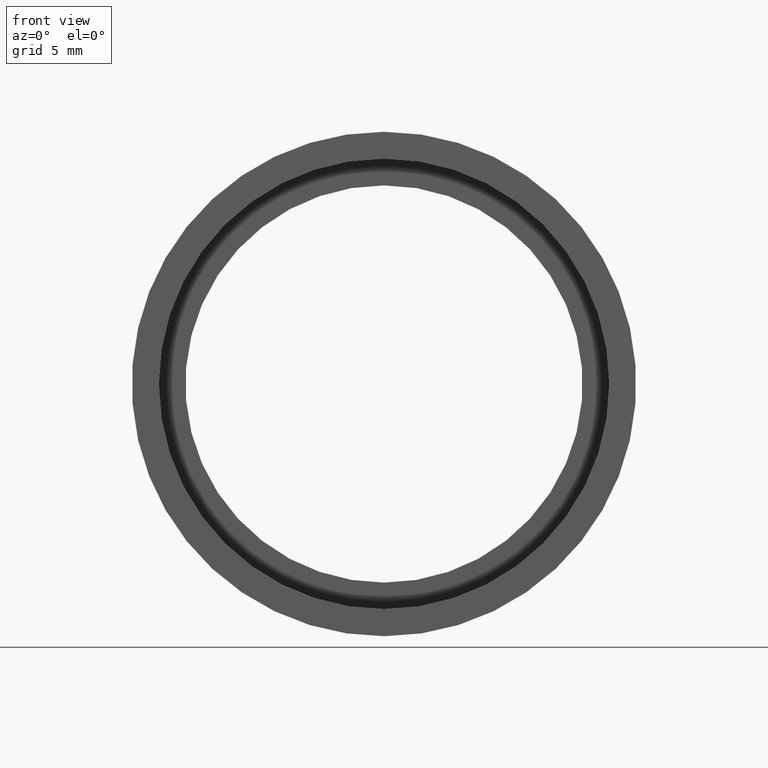
[diagram: clean part render]
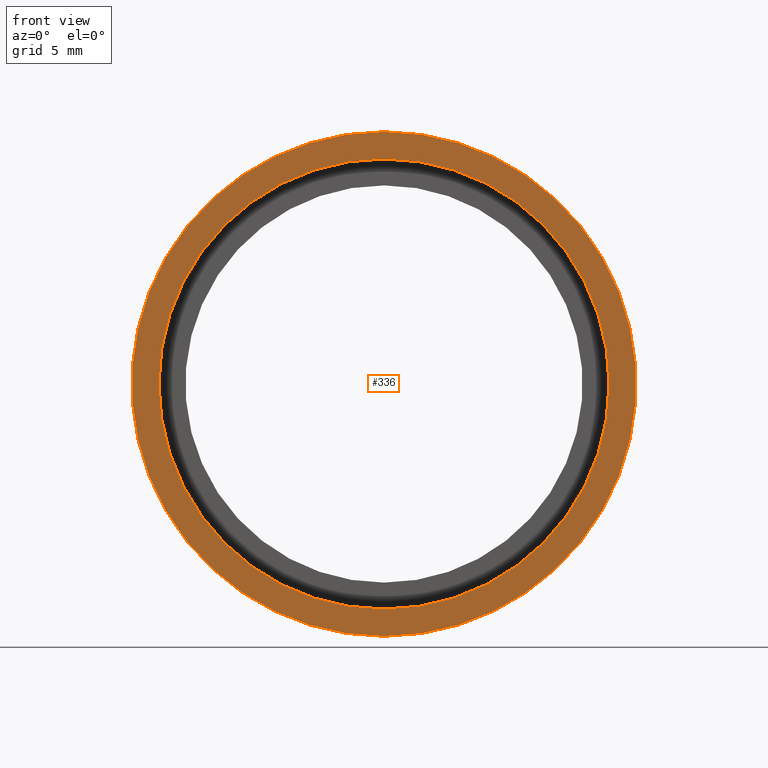
[diagram: same view with one face highlighted and labeled with its STEP entity id]
A machine part, front view. The second image highlights one B-rep face of the part: STEP entity #336.
In plain terms, the highlighted planar face has unit normal (-0, 1, 0).
Its self-contained STEP definition (entity closure, byte-faithful):
#1 = CARTESIAN_POINT ( 'NONE',  ( 0.0000000000000000000, -2.775557561562891400E-014, 0.0000000000000000000 ) ) ;
#21 = CARTESIAN_POINT ( 'NONE',  ( 0.0000000000000000000, -2.775557561562891400E-014, 19.05000000000002200 ) ) ;
#29 = EDGE_LOOP ( 'NONE', ( #354, #327 ) ) ;
#38 = DIRECTION ( 'NONE',  ( -0.0000000000000000000, 1.000000000000000000, -0.0000000000000000000 ) ) ;
#89 = CIRCLE ( 'NONE', #367, 19.05000000000002200 ) ;
#92 = CARTESIAN_POINT ( 'NONE',  ( 17.00000000000002100, -1.493598162583808000E-014, 0.0000000000000000000 ) ) ;
#94 = DIRECTION ( 'NONE',  ( 0.0000000000000000000, 0.0000000000000000000, 1.000000000000000000 ) ) ;
#101 = AXIS2_PLACEMENT_3D ( 'NONE', #526, #237, #574 ) ;
#126 = CARTESIAN_POINT ( 'NONE',  ( 0.0000000000000000000, -2.775557561562891400E-014, 17.00000000000002100 ) ) ;
#153 = AXIS2_PLACEMENT_3D ( 'NONE', #1, #191, #94 ) ;
#175 = FACE_BOUND ( 'NONE', #29, .T. ) ;
#178 = ORIENTED_EDGE ( 'NONE', *, *, #360, .F. ) ;
#191 = DIRECTION ( 'NONE',  ( -0.0000000000000000000, 1.000000000000000000, -0.0000000000000000000 ) ) ;
#206 = CARTESIAN_POINT ( 'NONE',  ( 2.081899558550503000E-015, -2.775557561562891400E-014, -17.00000000000002100 ) ) ;
#216 = CIRCLE ( 'NONE', #523, 17.00000000000002100 ) ;
#237 = DIRECTION ( 'NONE',  ( -0.0000000000000000000, 1.000000000000000000, -0.0000000000000000000 ) ) ;
#258 = DIRECTION ( 'NONE',  ( -0.0000000000000000000, 1.000000000000000000, -0.0000000000000000000 ) ) ;
#280 = DIRECTION ( 'NONE',  ( 0.0000000000000000000, 0.0000000000000000000, 1.000000000000000000 ) ) ;
#292 = EDGE_CURVE ( 'NONE', #573, #320, #337, .T. ) ;
#303 = FACE_OUTER_BOUND ( 'NONE', #608, .T. ) ;
#315 = EDGE_CURVE ( 'NONE', #320, #573, #216, .T. ) ;
#320 = VERTEX_POINT ( 'NONE', #126 ) ;
#327 = ORIENTED_EDGE ( 'NONE', *, *, #292, .T. ) ;
#330 = CARTESIAN_POINT ( 'NONE',  ( 0.0000000000000000000, -2.775557561562891400E-014, 0.0000000000000000000 ) ) ;
#336 = ADVANCED_FACE ( 'NONE', ( #303, #175 ), #440, .F. ) ;
#337 = CIRCLE ( 'NONE', #101, 17.00000000000002100 ) ;
#340 = ORIENTED_EDGE ( 'NONE', *, *, #584, .F. ) ;
#352 = AXIS2_PLACEMENT_3D ( 'NONE', #92, #485, #388 ) ;
#354 = ORIENTED_EDGE ( 'NONE', *, *, #315, .T. ) ;
#356 = DIRECTION ( 'NONE',  ( 0.0000000000000000000, 0.0000000000000000000, 1.000000000000000000 ) ) ;
#360 = EDGE_CURVE ( 'NONE', #479, #622, #427, .T. ) ;
#367 = AXIS2_PLACEMENT_3D ( 'NONE', #540, #258, #356 ) ;
#388 = DIRECTION ( 'NONE',  ( 0.0000000000000000000, 0.0000000000000000000, 1.000000000000000000 ) ) ;
#427 = CIRCLE ( 'NONE', #153, 19.05000000000002200 ) ;
#440 = PLANE ( 'NONE',  #352 ) ;
#479 = VERTEX_POINT ( 'NONE', #536 ) ;
#485 = DIRECTION ( 'NONE',  ( -0.0000000000000000000, 1.000000000000000000, 0.0000000000000000000 ) ) ;
#523 = AXIS2_PLACEMENT_3D ( 'NONE', #330, #38, #280 ) ;
#526 = CARTESIAN_POINT ( 'NONE',  ( 0.0000000000000000000, -2.775557561562891400E-014, 0.0000000000000000000 ) ) ;
#536 = CARTESIAN_POINT ( 'NONE',  ( 2.332952152375710400E-015, -2.775557561562891400E-014, -19.05000000000002200 ) ) ;
#540 = CARTESIAN_POINT ( 'NONE',  ( 0.0000000000000000000, -2.775557561562891400E-014, 0.0000000000000000000 ) ) ;
#573 = VERTEX_POINT ( 'NONE', #206 ) ;
#574 = DIRECTION ( 'NONE',  ( 0.0000000000000000000, 0.0000000000000000000, 1.000000000000000000 ) ) ;
#584 = EDGE_CURVE ( 'NONE', #622, #479, #89, .T. ) ;
#608 = EDGE_LOOP ( 'NONE', ( #340, #178 ) ) ;
#622 = VERTEX_POINT ( 'NONE', #21 ) ;